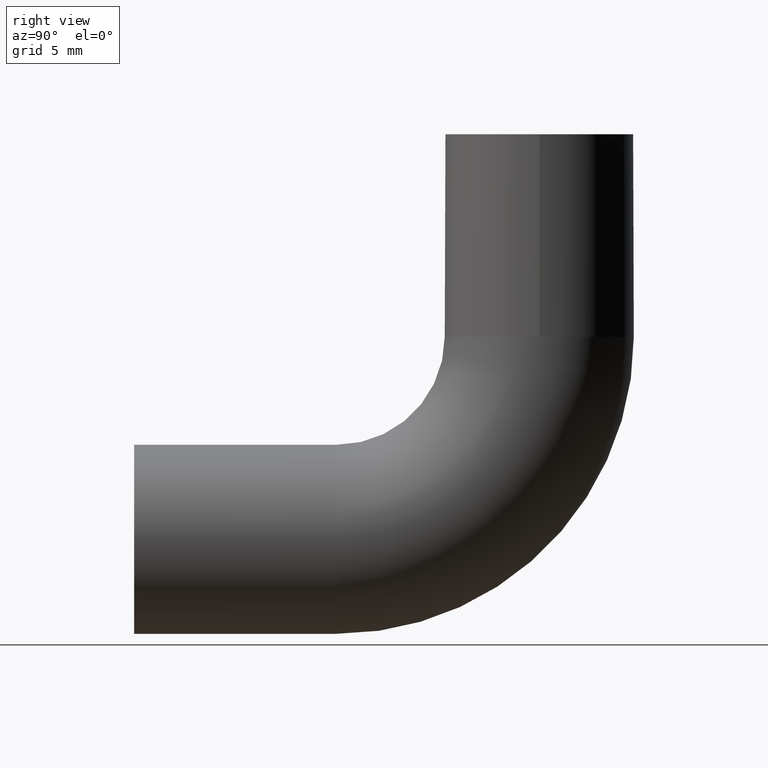
[diagram: clean part render]
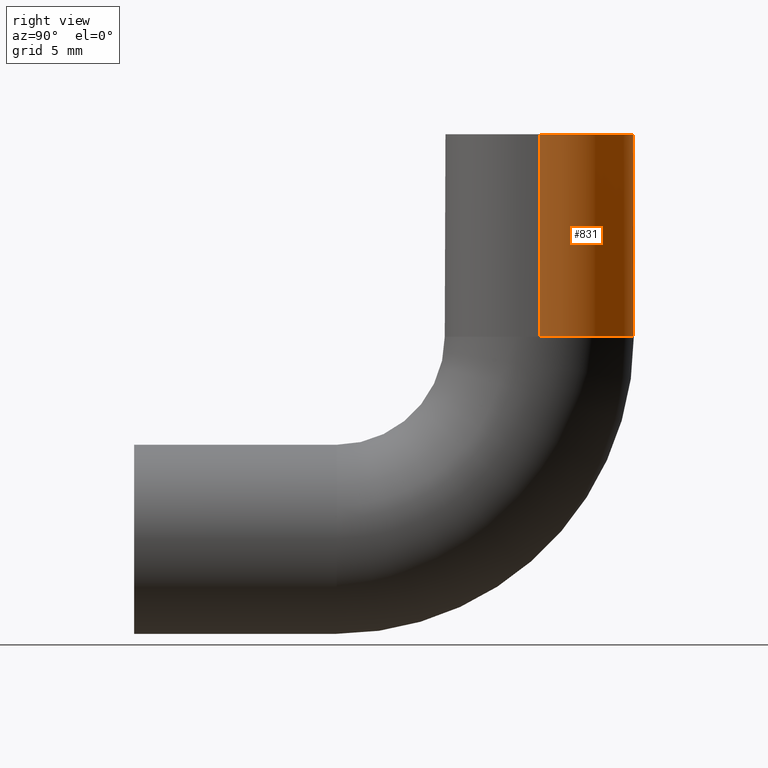
[diagram: same view with one face highlighted and labeled with its STEP entity id]
A machine part, right view. The second image highlights one B-rep face of the part: STEP entity #831.
In plain terms, the highlighted cylindrical surface (partial cylindrical patch) has radius 7 mm, axis along (0, 0, 1).
Its self-contained STEP definition (entity closure, byte-faithful):
#247 = DIRECTION ( 'NONE',  ( 0.000000000000000000, -1.608122649676636601E-16, 1.000000000000000000 ) ) ;
#592 = CYLINDRICAL_SURFACE ( 'NONE', #6671, 7.000000000000000000 ) ;
#831 = ADVANCED_FACE ( 'NONE', ( #4230 ), #592, .T. ) ;
#887 = ORIENTED_EDGE ( 'NONE', *, *, #6248, .F. ) ;
#1309 = CIRCLE ( 'NONE', #11757, 6.999999999999999112 ) ;
#1491 = CARTESIAN_POINT ( 'NONE',  ( 7.000000000000000000, 29.99999999999999645, 15.00000000000000355 ) ) ;
#1695 = AXIS2_PLACEMENT_3D ( 'NONE', #3708, #5804, #10026 ) ;
#1757 = VERTEX_POINT ( 'NONE', #8858 ) ;
#2093 = ORIENTED_EDGE ( 'NONE', *, *, #13009, .T. ) ;
#3146 = CARTESIAN_POINT ( 'NONE',  ( 0.000000000000000000, 29.99999999999999645, 15.00000000000000355 ) ) ;
#3644 = CARTESIAN_POINT ( 'NONE',  ( 0.000000000000000000, 36.99999999999999289, 15.00000000000000355 ) ) ;
#3708 = CARTESIAN_POINT ( 'NONE',  ( 0.000000000000000000, 29.99999999999999645, 30.00000000000000000 ) ) ;
#4230 = FACE_OUTER_BOUND ( 'NONE', #10173, .T. ) ;
#4313 = VERTEX_POINT ( 'NONE', #6075 ) ;
#4447 = DIRECTION ( 'NONE',  ( 0.000000000000000000, 0.000000000000000000, 1.000000000000000000 ) ) ;
#5163 = DIRECTION ( 'NONE',  ( 0.000000000000000000, 0.000000000000000000, 1.000000000000000000 ) ) ;
#5450 = EDGE_CURVE ( 'NONE', #10130, #6383, #1309, .T. ) ;
#5456 = VECTOR ( 'NONE', #5163, 1000.000000000000000 ) ;
#5804 = DIRECTION ( 'NONE',  ( 0.000000000000000000, -1.608122649676636601E-16, 1.000000000000000000 ) ) ;
#6048 = CARTESIAN_POINT ( 'NONE',  ( -7.000000000000000000, 29.99999999999999645, 15.00000000000000355 ) ) ;
#6075 = CARTESIAN_POINT ( 'NONE',  ( -7.000000000000000000, 29.99999999999999645, 30.00000000000000000 ) ) ;
#6079 = CARTESIAN_POINT ( 'NONE',  ( 0.000000000000000000, 29.99999999999999645, 15.00000000000000355 ) ) ;
#6111 = AXIS2_PLACEMENT_3D ( 'NONE', #6183, #247, #11254 ) ;
#6155 = DIRECTION ( 'NONE',  ( 1.000000000000000000, 0.000000000000000000, 0.000000000000000000 ) ) ;
#6183 = CARTESIAN_POINT ( 'NONE',  ( 0.000000000000000000, 29.99999999999999645, 15.00000000000000355 ) ) ;
#6194 = CIRCLE ( 'NONE', #6111, 6.999999999999999112 ) ;
#6248 = EDGE_CURVE ( 'NONE', #10130, #1757, #10634, .T. ) ;
#6383 = VERTEX_POINT ( 'NONE', #3644 ) ;
#6671 = AXIS2_PLACEMENT_3D ( 'NONE', #3146, #8179, #6155 ) ;
#7295 = VERTEX_POINT ( 'NONE', #6048 ) ;
#7442 = EDGE_CURVE ( 'NONE', #6383, #7295, #6194, .T. ) ;
#7955 = ORIENTED_EDGE ( 'NONE', *, *, #5450, .T. ) ;
#7967 = VECTOR ( 'NONE', #4447, 1000.000000000000000 ) ;
#8179 = DIRECTION ( 'NONE',  ( 0.000000000000000000, 0.000000000000000000, 1.000000000000000000 ) ) ;
#8858 = CARTESIAN_POINT ( 'NONE',  ( 7.000000000000000000, 29.99999999999999645, 30.00000000000000000 ) ) ;
#9908 = CIRCLE ( 'NONE', #1695, 6.999999999999999112 ) ;
#10026 = DIRECTION ( 'NONE',  ( 0.000000000000000000, -1.000000000000000000, 0.000000000000000000 ) ) ;
#10130 = VERTEX_POINT ( 'NONE', #12421 ) ;
#10173 = EDGE_LOOP ( 'NONE', ( #7955, #12580, #2093, #10661, #887 ) ) ;
#10314 = CARTESIAN_POINT ( 'NONE',  ( -7.000000000000000000, 29.99999999999999645, 15.00000000000000355 ) ) ;
#10377 = EDGE_CURVE ( 'NONE', #1757, #4313, #9908, .T. ) ;
#10634 = LINE ( 'NONE', #1491, #7967 ) ;
#10661 = ORIENTED_EDGE ( 'NONE', *, *, #10377, .F. ) ;
#10828 = LINE ( 'NONE', #10314, #5456 ) ;
#11198 = DIRECTION ( 'NONE',  ( 0.000000000000000000, -1.608122649676636601E-16, 1.000000000000000000 ) ) ;
#11254 = DIRECTION ( 'NONE',  ( 0.000000000000000000, -1.000000000000000000, -2.478176394252581634E-16 ) ) ;
#11757 = AXIS2_PLACEMENT_3D ( 'NONE', #6079, #11198, #12038 ) ;
#12038 = DIRECTION ( 'NONE',  ( 0.000000000000000000, -1.000000000000000000, -2.478176394252581634E-16 ) ) ;
#12421 = CARTESIAN_POINT ( 'NONE',  ( 7.000000000000000000, 29.99999999999999645, 15.00000000000000355 ) ) ;
#12580 = ORIENTED_EDGE ( 'NONE', *, *, #7442, .T. ) ;
#13009 = EDGE_CURVE ( 'NONE', #7295, #4313, #10828, .T. ) ;